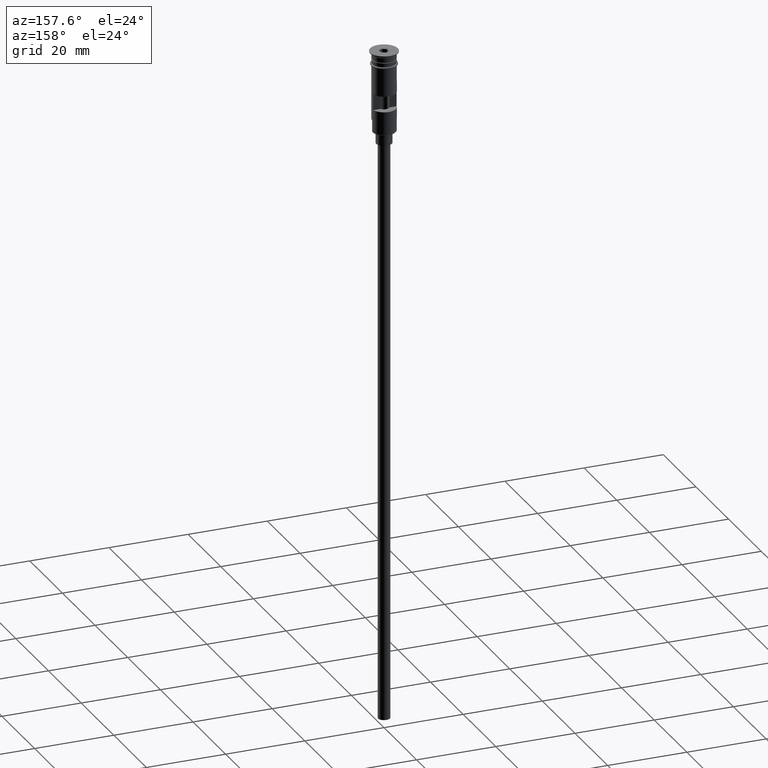
[diagram: clean part render]
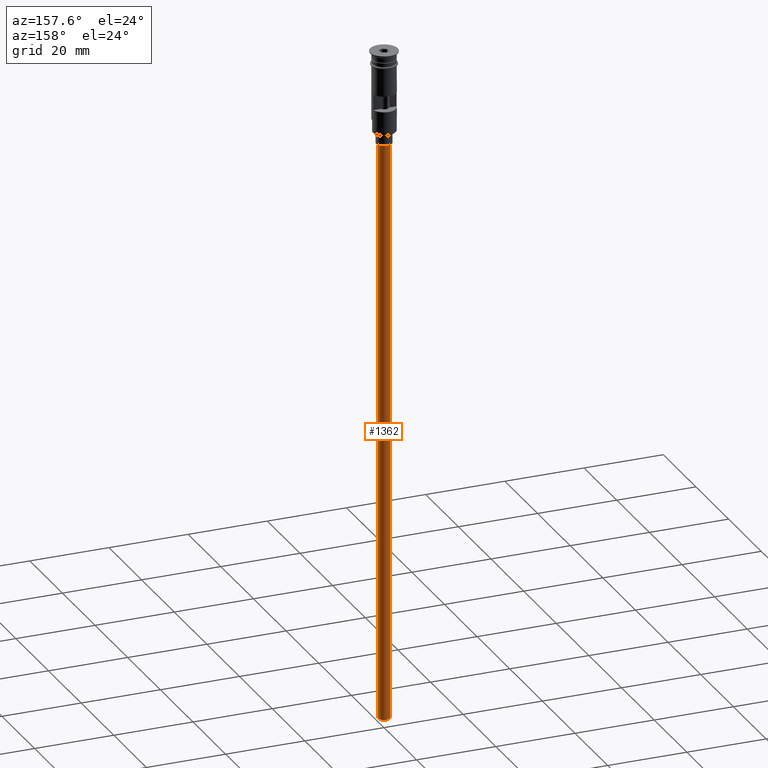
[diagram: same view with one face highlighted and labeled with its STEP entity id]
A machine part, auxiliary view. The second image highlights one B-rep face of the part: STEP entity #1362.
In plain terms, the highlighted cylindrical surface (edge-blend (fillet) strip) has radius 1.5 mm, axis along (-0, -0, 1).
Its self-contained STEP definition (entity closure, byte-faithful):
#87 = DIRECTION ( 'NONE',  ( 0.000000000000000000, 0.000000000000000000, -1.000000000000000000 ) ) ;
#101 = CARTESIAN_POINT ( 'NONE',  ( 1.500000000000000222, 0.000000000000000000, -170.4999999999999716 ) ) ;
#123 = DIRECTION ( 'NONE',  ( -1.000000000000000000, 0.000000000000000000, 0.000000000000000000 ) ) ;
#160 = EDGE_CURVE ( 'NONE', #682, #1395, #465, .T. ) ;
#169 = AXIS2_PLACEMENT_3D ( 'NONE', #690, #87, #1452 ) ;
#196 = CARTESIAN_POINT ( 'NONE',  ( 1.500000000000000222, 0.000000000000000000, -23.50000000000000000 ) ) ;
#241 = AXIS2_PLACEMENT_3D ( 'NONE', #1281, #897, #319 ) ;
#286 = DIRECTION ( 'NONE',  ( -0.000000000000000000, -0.000000000000000000, 1.000000000000000000 ) ) ;
#294 = VECTOR ( 'NONE', #1090, 1000.000000000000000 ) ;
#300 = CIRCLE ( 'NONE', #169, 1.500000000000000222 ) ;
#319 = DIRECTION ( 'NONE',  ( 1.000000000000000000, 0.000000000000000000, 0.000000000000000000 ) ) ;
#363 = ORIENTED_EDGE ( 'NONE', *, *, #1600, .T. ) ;
#386 = VERTEX_POINT ( 'NONE', #522 ) ;
#426 = AXIS2_PLACEMENT_3D ( 'NONE', #1370, #778, #123 ) ;
#465 = LINE ( 'NONE', #101, #294 ) ;
#522 = CARTESIAN_POINT ( 'NONE',  ( -1.500000000000000222, 1.836970198721030181E-16, -23.50000000000000000 ) ) ;
#578 = VERTEX_POINT ( 'NONE', #593 ) ;
#593 = CARTESIAN_POINT ( 'NONE',  ( -1.500000000000000222, 1.836970198721030181E-16, -170.4999999999999716 ) ) ;
#634 = ORIENTED_EDGE ( 'NONE', *, *, #160, .F. ) ;
#651 = CYLINDRICAL_SURFACE ( 'NONE', #241, 1.500000000000000222 ) ;
#682 = VERTEX_POINT ( 'NONE', #1474 ) ;
#690 = CARTESIAN_POINT ( 'NONE',  ( 0.000000000000000000, 0.000000000000000000, -23.50000000000000000 ) ) ;
#706 = ORIENTED_EDGE ( 'NONE', *, *, #1382, .T. ) ;
#753 = EDGE_CURVE ( 'NONE', #578, #682, #922, .T. ) ;
#765 = CARTESIAN_POINT ( 'NONE',  ( -1.500000000000000222, 1.836970198721030181E-16, -170.4999999999999716 ) ) ;
#778 = DIRECTION ( 'NONE',  ( 0.000000000000000000, 0.000000000000000000, -1.000000000000000000 ) ) ;
#897 = DIRECTION ( 'NONE',  ( -0.000000000000000000, -0.000000000000000000, 1.000000000000000000 ) ) ;
#922 = CIRCLE ( 'NONE', #426, 1.500000000000000222 ) ;
#940 = FACE_OUTER_BOUND ( 'NONE', #1191, .T. ) ;
#1007 = LINE ( 'NONE', #765, #1361 ) ;
#1090 = DIRECTION ( 'NONE',  ( -0.000000000000000000, -0.000000000000000000, 1.000000000000000000 ) ) ;
#1191 = EDGE_LOOP ( 'NONE', ( #1311, #706, #363, #634 ) ) ;
#1281 = CARTESIAN_POINT ( 'NONE',  ( 0.000000000000000000, 0.000000000000000000, -170.4999999999999716 ) ) ;
#1311 = ORIENTED_EDGE ( 'NONE', *, *, #753, .F. ) ;
#1361 = VECTOR ( 'NONE', #286, 1000.000000000000000 ) ;
#1362 = ADVANCED_FACE ( 'NONE', ( #940 ), #651, .T. ) ;
#1370 = CARTESIAN_POINT ( 'NONE',  ( 0.000000000000000000, 0.000000000000000000, -170.4999999999999716 ) ) ;
#1382 = EDGE_CURVE ( 'NONE', #578, #386, #1007, .T. ) ;
#1395 = VERTEX_POINT ( 'NONE', #196 ) ;
#1452 = DIRECTION ( 'NONE',  ( -1.000000000000000000, 0.000000000000000000, 0.000000000000000000 ) ) ;
#1474 = CARTESIAN_POINT ( 'NONE',  ( 1.500000000000000222, 0.000000000000000000, -170.4999999999999716 ) ) ;
#1600 = EDGE_CURVE ( 'NONE', #386, #1395, #300, .T. ) ;